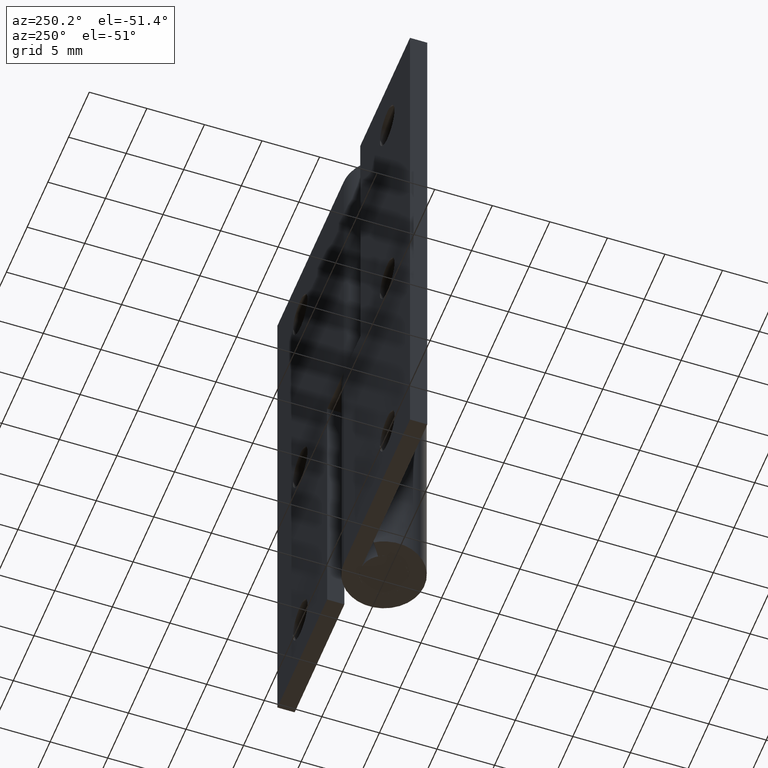
[diagram: clean part render]
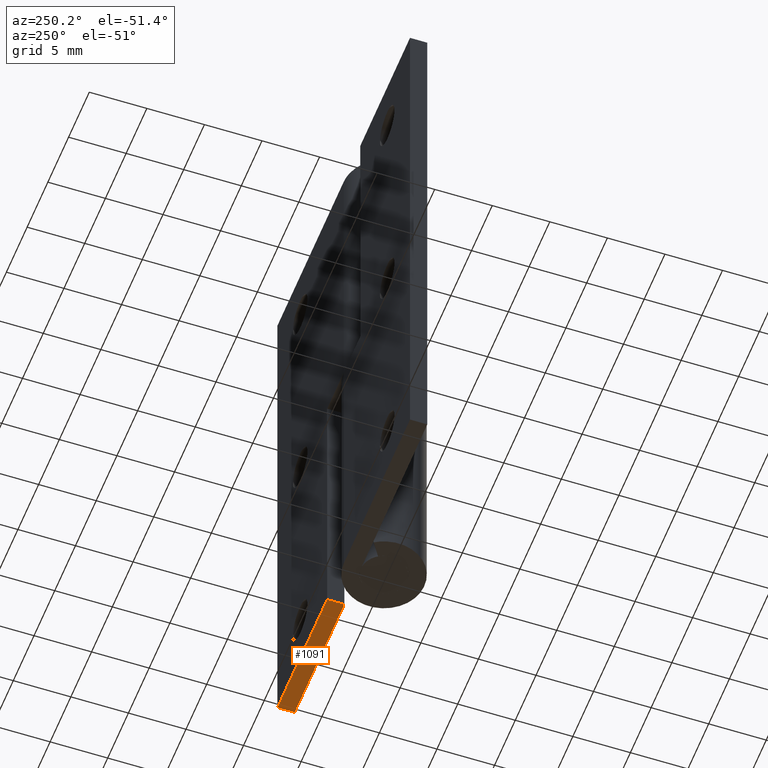
[diagram: same view with one face highlighted and labeled with its STEP entity id]
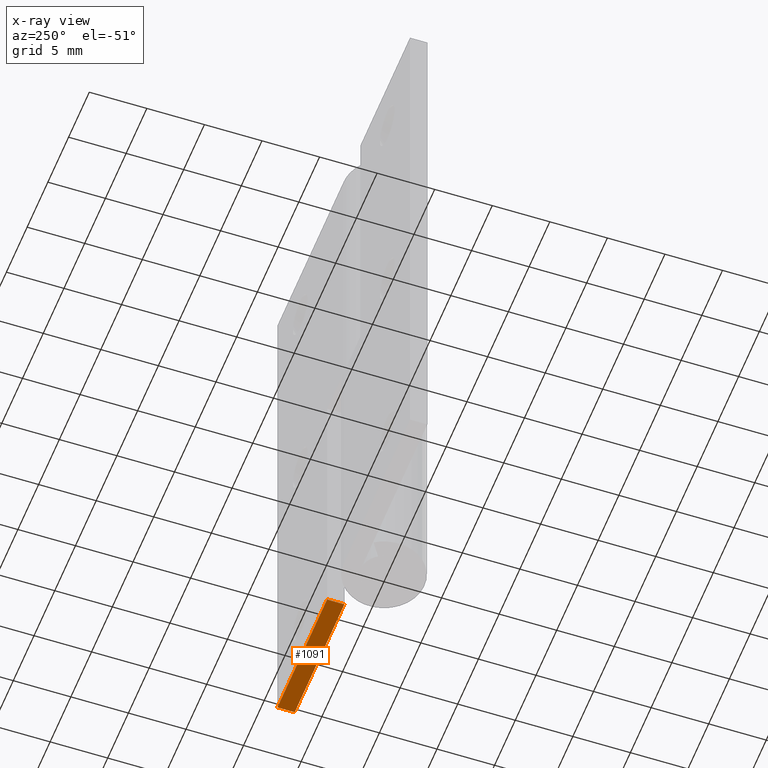
[diagram: x-ray of the same camera — body ghosted, the highlighted face saturated]
A machine part, auxiliary view. The second image highlights one B-rep face of the part: STEP entity #1091.
The next image is the same camera in x-ray: the body ghosted, the highlighted face saturated — about 0% of this face is hidden behind the body in this view.
In plain terms, the highlighted face is a freeform B-spline surface patch.
Its self-contained STEP definition (entity closure, byte-faithful):
#865=CARTESIAN_POINT('',(4.0,2.0,0.0));
#866=VERTEX_POINT('',#865);
#881=CARTESIAN_POINT('',(4.0,3.500000000000000,0.0));
#882=VERTEX_POINT('',#881);
#888=CARTESIAN_POINT('',(4.0,3.500000000000000,0.0));
#889=CARTESIAN_POINT('',(4.0,2.0,0.0));
#890=QUASI_UNIFORM_CURVE('',1,(#888,#889),.UNSPECIFIED.,.F.,.U.);
#891=EDGE_CURVE('',#882,#866,#890,.T.);
#1050=CARTESIAN_POINT('',(16.0,2.0,0.0));
#1051=VERTEX_POINT('',#1050);
#1057=CARTESIAN_POINT('',(16.0,3.500000000000000,0.0));
#1058=VERTEX_POINT('',#1057);
#1059=CARTESIAN_POINT('',(16.0,3.500000000000000,0.0));
#1060=CARTESIAN_POINT('',(16.0,2.0,0.0));
#1061=QUASI_UNIFORM_CURVE('',1,(#1059,#1060),.UNSPECIFIED.,.F.,.U.);
#1062=EDGE_CURVE('',#1058,#1051,#1061,.T.);
#1072=CARTESIAN_POINT('',(3.400600023258329,1.925075002907291,0.0));
#1073=CARTESIAN_POINT('',(16.599400298606749,1.925075002907291,0.0));
#1074=CARTESIAN_POINT('',(3.400600023258329,3.574925037325845,0.0));
#1075=CARTESIAN_POINT('',(16.599400298606749,3.574925037325845,0.0));
#1076=B_SPLINE_SURFACE_WITH_KNOTS('',1,1,((#1072,#1074),(#1073,#1075)),.UNSPECIFIED.,.F.,.F.,.U.,(2,2),(2,2),(0.0,13.198800275348420),(0.041708334948495,0.958291687403247),.UNSPECIFIED.);
#1077=CARTESIAN_POINT('',(16.0,2.0,0.0));
#1078=CARTESIAN_POINT('',(4.0,2.0,0.0));
#1079=QUASI_UNIFORM_CURVE('',1,(#1077,#1078),.UNSPECIFIED.,.F.,.U.);
#1080=EDGE_CURVE('',#1051,#866,#1079,.T.);
#1081=ORIENTED_EDGE('',*,*,#1080,.T.);
#1082=ORIENTED_EDGE('',*,*,#891,.F.);
#1083=CARTESIAN_POINT('',(4.0,3.500000000000000,0.0));
#1084=CARTESIAN_POINT('',(16.0,3.500000000000000,0.0));
#1085=QUASI_UNIFORM_CURVE('',1,(#1083,#1084),.UNSPECIFIED.,.F.,.U.);
#1086=EDGE_CURVE('',#882,#1058,#1085,.T.);
#1087=ORIENTED_EDGE('',*,*,#1086,.T.);
#1088=ORIENTED_EDGE('',*,*,#1062,.T.);
#1089=EDGE_LOOP('',(#1081,#1082,#1087,#1088));
#1090=FACE_OUTER_BOUND('',#1089,.T.);
#1091=ADVANCED_FACE('',(#1090),#1076,.F.);